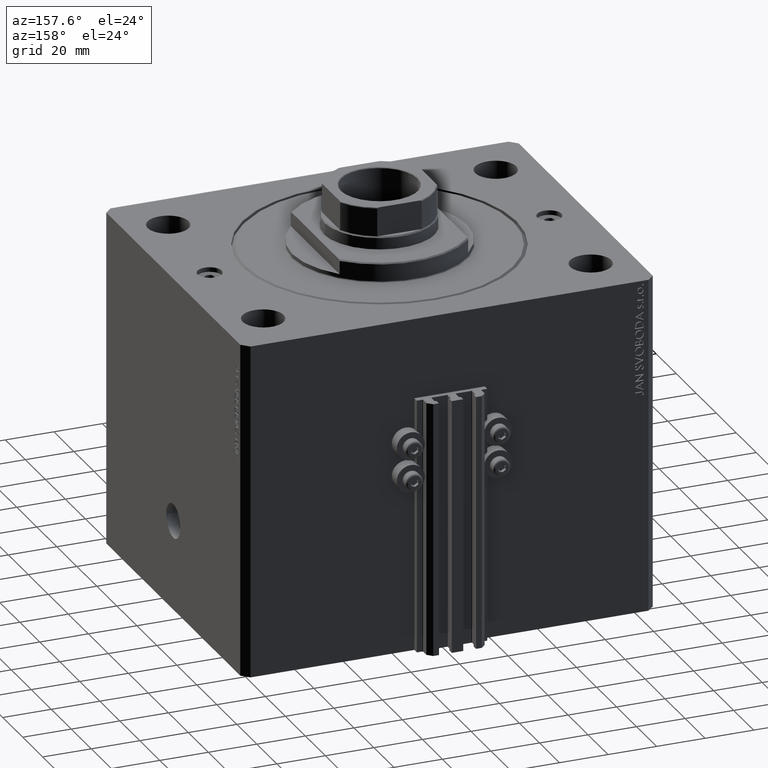
[diagram: clean part render]
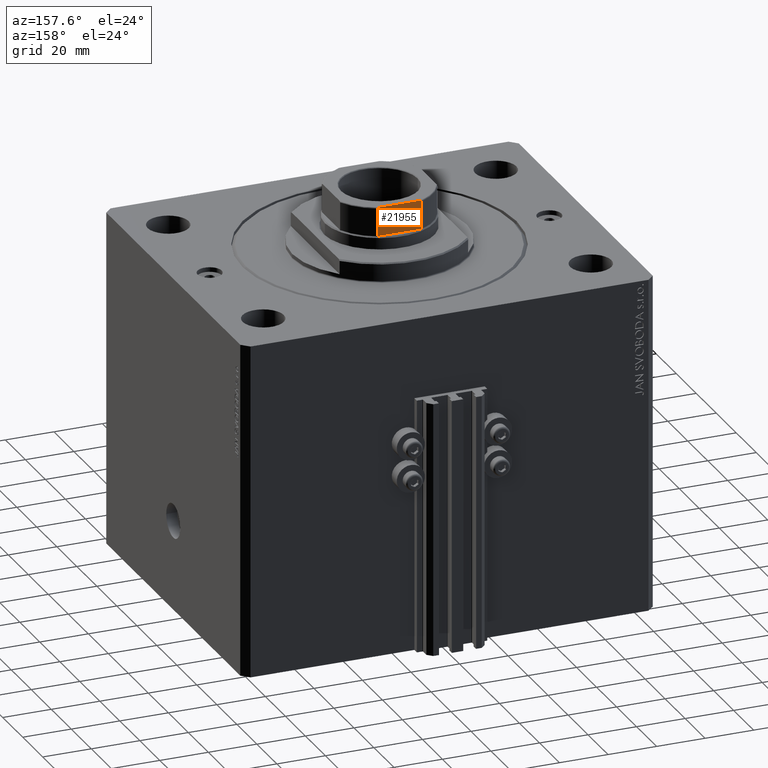
[diagram: same view with one face highlighted and labeled with its STEP entity id]
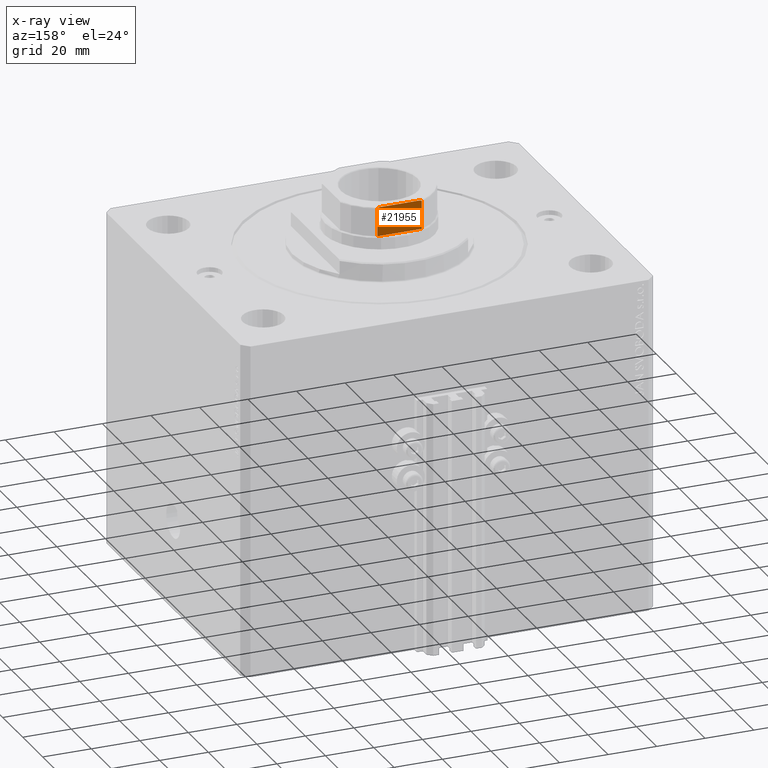
[diagram: x-ray of the same camera — body ghosted, the highlighted face saturated]
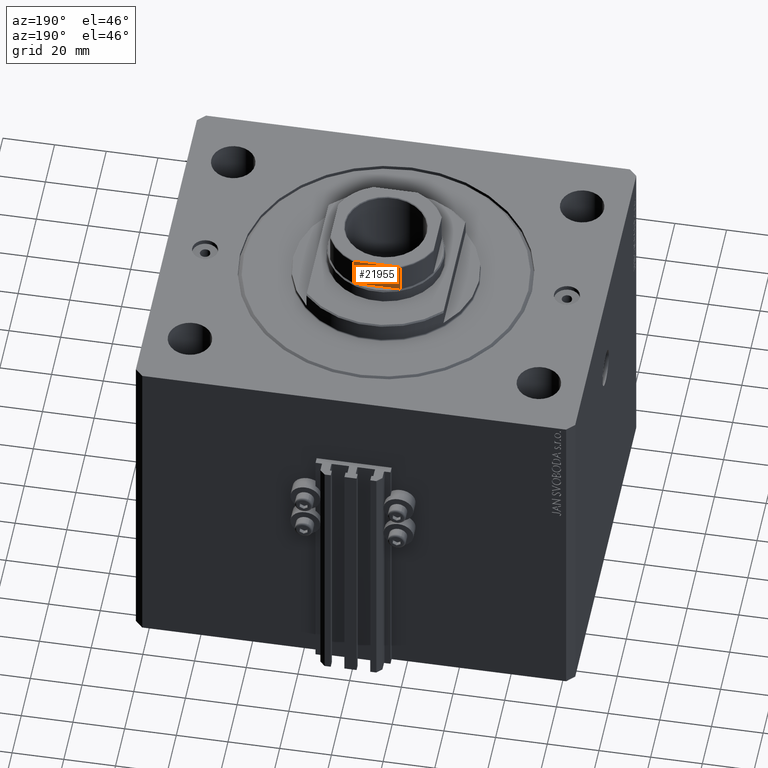
[diagram: same view with one face highlighted and labeled with its STEP entity id]
A machine part, auxiliary view. The second image highlights one B-rep face of the part: STEP entity #21955.
The next image is the same camera in x-ray: the body ghosted, the highlighted face saturated — about 0% of this face is hidden behind the body in this view.
A second angle (auxiliary view) of the same face is appended — the face is thin or edge-on in the first view.
In plain terms, the highlighted planar face has unit normal (0, -1, 0).
Its self-contained STEP definition (entity closure, byte-faithful):
#1124 = CARTESIAN_POINT ( 'NONE',  ( -9.165151389911676105, 20.00000000000000000, 133.6000000000000227 ) ) ;
#2128 = CARTESIAN_POINT ( 'NONE',  ( -9.165151389911674329, 20.00000000000000000, 122.1000000000000369 ) ) ;
#3091 = ORIENTED_EDGE ( 'NONE', *, *, #5315, .F. ) ;
#3366 = CARTESIAN_POINT ( 'NONE',  ( 7.889866919029743464, 20.00000000000000000, 134.1000000000000227 ) ) ;
#3603 = ORIENTED_EDGE ( 'NONE', *, *, #9103, .T. ) ;
#3773 = CARTESIAN_POINT ( 'NONE',  ( 8.134318822980977970, 19.99999999999999645, 134.1000000000000512 ) ) ;
#3905 = B_SPLINE_CURVE_WITH_KNOTS ( 'NONE', 3,
 ( #25990, #3773, #14997, #11415, #29108, #43217, #7840, #47261, #22415, #7358 ),
 .UNSPECIFIED., .F., .F.,
 ( 4, 2, 2, 2, 4 ),
 ( 1.734723475976807094E-18, 0.0007281986681936633739, 0.001092298002290502000, 0.001274347669338919253, 0.001456397336387336289 ),
 .UNSPECIFIED. ) ;
#4079 = CARTESIAN_POINT ( 'NONE',  ( 9.165151389911676105, 20.00000000000000000, -0.001000000000001000089 ) ) ;
#4228 = CARTESIAN_POINT ( 'NONE',  ( -8.731041210088298143, 20.00000000000000000, 133.9862065548025214 ) ) ;
#5145 = CARTESIAN_POINT ( 'NONE',  ( -20.00000000000000355, 20.00000000000000000, 122.1000000000000085 ) ) ;
#5315 = EDGE_CURVE ( 'NONE', #16249, #36982, #7646, .T. ) ;
#6803 = PLANE ( 'NONE',  #38071 ) ;
#7358 = CARTESIAN_POINT ( 'NONE',  ( 9.165151389911676105, 20.00000000000000000, 133.6000000000000227 ) ) ;
#7561 = CARTESIAN_POINT ( 'NONE',  ( -8.847700323750238738, 20.00000000000000000, 133.9454059445000098 ) ) ;
#7646 = LINE ( 'NONE', #4079, #45206 ) ;
#7840 = CARTESIAN_POINT ( 'NONE',  ( 9.056020599733276555, 20.00000000000000000, 133.8137161059354128 ) ) ;
#8304 = LINE ( 'NONE', #44384, #30156 ) ;
#9103 = EDGE_CURVE ( 'NONE', #39178, #43384, #22197, .T. ) ;
#9210 = EDGE_CURVE ( 'NONE', #16249, #10477, #27602, .T. ) ;
#10477 = VERTEX_POINT ( 'NONE', #2128 ) ;
#11154 = CARTESIAN_POINT ( 'NONE',  ( -9.135943898188770618, 20.00000000000000000, 133.7204496596643253 ) ) ;
#11415 = CARTESIAN_POINT ( 'NONE',  ( 8.731854386667052381, 20.00000000000000000, 133.9859761974169885 ) ) ;
#12451 = EDGE_CURVE ( 'NONE', #43715, #36982, #3905, .T. ) ;
#12553 = EDGE_CURVE ( 'NONE', #43715, #43384, #8304, .T. ) ;
#14070 = ORIENTED_EDGE ( 'NONE', *, *, #9210, .T. ) ;
#14997 = CARTESIAN_POINT ( 'NONE',  ( 8.376270842886095025, 20.00000000000000000, 134.0790317661354152 ) ) ;
#15444 = CARTESIAN_POINT ( 'NONE',  ( -8.134263528852956782, 20.00000000000000355, 134.1000000000000512 ) ) ;
#16249 = VERTEX_POINT ( 'NONE', #37340 ) ;
#17992 = CARTESIAN_POINT ( 'NONE',  ( -9.165151389911676105, 20.00000000000000000, -0.001000000000001000089 ) ) ;
#18223 = CARTESIAN_POINT ( 'NONE',  ( -7.889866919029745240, 20.00000000000000000, 134.1000000000000227 ) ) ;
#20125 = EDGE_LOOP ( 'NONE', ( #25070, #44631, #3091, #14070, #46216, #3603 ) ) ;
#20915 = FACE_OUTER_BOUND ( 'NONE', #20125, .T. ) ;
#21955 = ADVANCED_FACE ( 'NONE', ( #20915 ), #6803, .F. ) ;
#22139 = CARTESIAN_POINT ( 'NONE',  ( -9.165151389911674329, 19.99999999999999645, 133.6624095850606864 ) ) ;
#22197 = B_SPLINE_CURVE_WITH_KNOTS ( 'NONE', 3,
 ( #1124, #22139, #11154, #22615, #30234, #7561, #4228, #33136, #15444, #26427 ),
 .UNSPECIFIED., .F., .F.,
 ( 4, 2, 2, 2, 4 ),
 ( 0.000000000000000000, 0.0001842078696388121408, 0.0003684157392776242815, 0.0007368314785552102907, 0.001473662957110382201 ),
 .UNSPECIFIED. ) ;
#22228 = DIRECTION ( 'NONE',  ( -0.000000000000000000, -0.000000000000000000, 1.000000000000000000 ) ) ;
#22415 = CARTESIAN_POINT ( 'NONE',  ( 9.165151389911676105, 19.99999999999999645, 133.6622865831653257 ) ) ;
#22615 = CARTESIAN_POINT ( 'NONE',  ( -9.055524318101884518, 20.00000000000000355, 133.8141986763097862 ) ) ;
#24918 = LINE ( 'NONE', #17992, #31978 ) ;
#25070 = ORIENTED_EDGE ( 'NONE', *, *, #12553, .F. ) ;
#25990 = CARTESIAN_POINT ( 'NONE',  ( 7.889866919029743464, 20.00000000000000000, 134.1000000000000227 ) ) ;
#26427 = CARTESIAN_POINT ( 'NONE',  ( -7.889866919029745240, 20.00000000000000000, 134.1000000000000227 ) ) ;
#27602 = LINE ( 'NONE', #5145, #42291 ) ;
#29108 = CARTESIAN_POINT ( 'NONE',  ( 8.849170428565226842, 20.00000000000000000, 133.9446655850051968 ) ) ;
#30156 = VECTOR ( 'NONE', #41510, 1000.000000000000000 ) ;
#30234 = CARTESIAN_POINT ( 'NONE',  ( -9.005650948982575343, 20.00000000000000355, 133.8512182151569334 ) ) ;
#30529 = CARTESIAN_POINT ( 'NONE',  ( -9.165151389911676105, 20.00000000000000000, 133.6000000000000227 ) ) ;
#31413 = DIRECTION ( 'NONE',  ( -1.000000000000000000, -0.000000000000000000, -0.000000000000000000 ) ) ;
#31602 = DIRECTION ( 'NONE',  ( -0.000000000000000000, -0.000000000000000000, 1.000000000000000000 ) ) ;
#31653 = DIRECTION ( 'NONE',  ( 0.000000000000000000, -0.000000000000000000, -1.000000000000000000 ) ) ;
#31978 = VECTOR ( 'NONE', #31602, 1000.000000000000000 ) ;
#33136 = CARTESIAN_POINT ( 'NONE',  ( -8.377106304411494619, 19.99999999999999645, 134.0787779673725026 ) ) ;
#35662 = EDGE_CURVE ( 'NONE', #10477, #39178, #24918, .T. ) ;
#36982 = VERTEX_POINT ( 'NONE', #37216 ) ;
#37216 = CARTESIAN_POINT ( 'NONE',  ( 9.165151389911676105, 20.00000000000000000, 133.6000000000000227 ) ) ;
#37340 = CARTESIAN_POINT ( 'NONE',  ( 9.165151389911676105, 20.00000000000000000, 122.1000000000000369 ) ) ;
#38071 = AXIS2_PLACEMENT_3D ( 'NONE', #39776, #39068, #31653 ) ;
#39068 = DIRECTION ( 'NONE',  ( 0.000000000000000000, -1.000000000000000000, 0.000000000000000000 ) ) ;
#39178 = VERTEX_POINT ( 'NONE', #30529 ) ;
#39776 = CARTESIAN_POINT ( 'NONE',  ( -20.00000000000000355, 20.00000000000000000, 134.1000000000000227 ) ) ;
#41510 = DIRECTION ( 'NONE',  ( -1.000000000000000000, -0.000000000000000000, -0.000000000000000000 ) ) ;
#42291 = VECTOR ( 'NONE', #31413, 1000.000000000000000 ) ;
#43217 = CARTESIAN_POINT ( 'NONE',  ( 9.005944049512759619, 20.00000000000000000, 133.8509746237500337 ) ) ;
#43384 = VERTEX_POINT ( 'NONE', #18223 ) ;
#43715 = VERTEX_POINT ( 'NONE', #3366 ) ;
#44384 = CARTESIAN_POINT ( 'NONE',  ( -20.00000000000000355, 20.00000000000000000, 134.1000000000000227 ) ) ;
#44631 = ORIENTED_EDGE ( 'NONE', *, *, #12451, .T. ) ;
#45206 = VECTOR ( 'NONE', #22228, 1000.000000000000000 ) ;
#46216 = ORIENTED_EDGE ( 'NONE', *, *, #35662, .T. ) ;
#47261 = CARTESIAN_POINT ( 'NONE',  ( 9.135966866521640029, 19.99999999999999645, 133.7203262903151142 ) ) ;